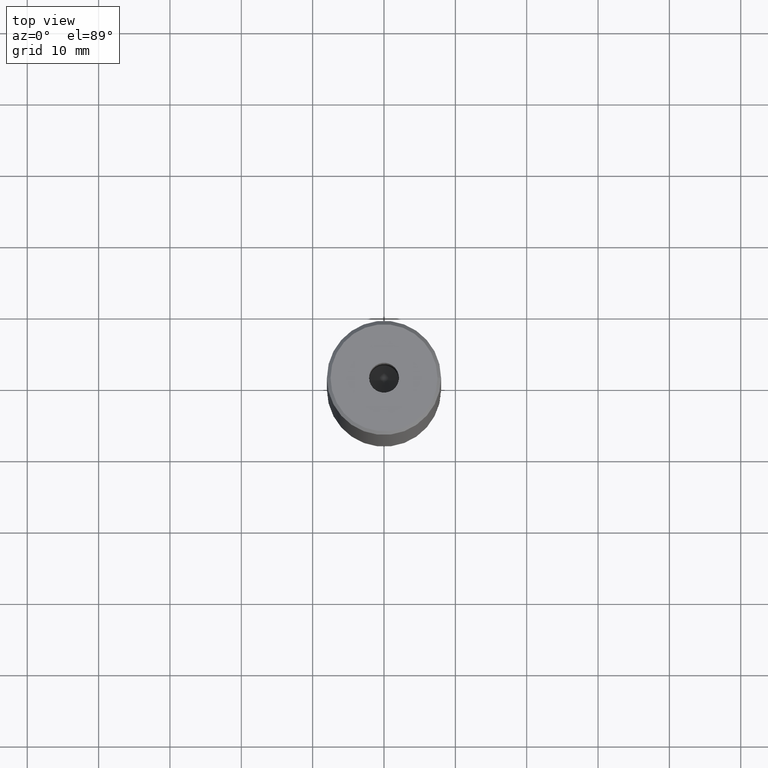
[diagram: clean part render]
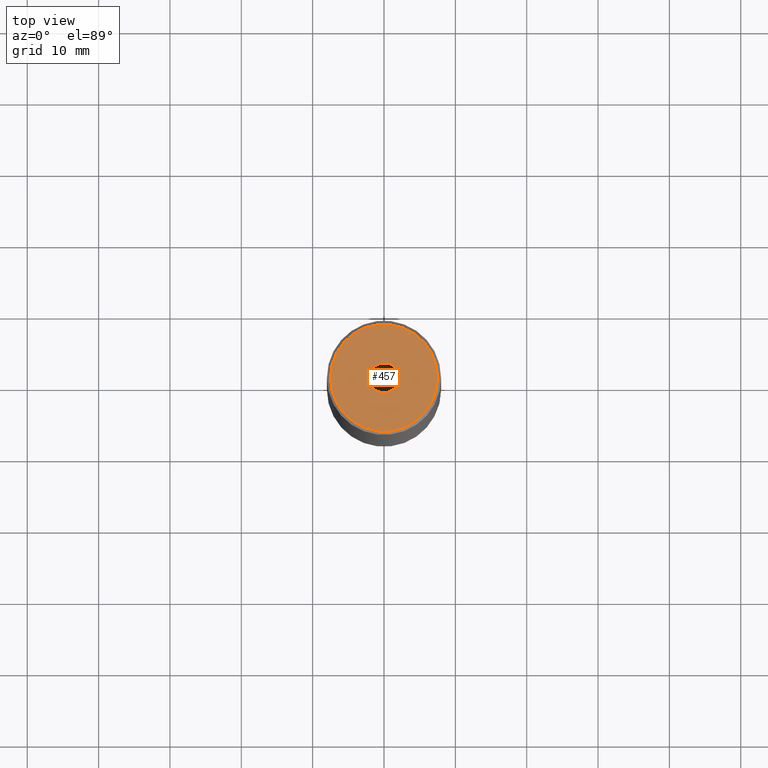
[diagram: same view with one face highlighted and labeled with its STEP entity id]
A machine part, top view. The second image highlights one B-rep face of the part: STEP entity #457.
In plain terms, the highlighted planar face has unit normal (0, -0, 1).
Its self-contained STEP definition (entity closure, byte-faithful):
#9 = VERTEX_POINT ( 'NONE', #400 ) ;
#26 = EDGE_LOOP ( 'NONE', ( #102, #473 ) ) ;
#47 = CIRCLE ( 'NONE', #399, 7.499999999999978684 ) ;
#62 = FACE_OUTER_BOUND ( 'NONE', #26, .T. ) ;
#68 = DIRECTION ( 'NONE',  ( 1.000000000000000000, 0.000000000000000000, 0.000000000000000000 ) ) ;
#74 = AXIS2_PLACEMENT_3D ( 'NONE', #79, #386, #249 ) ;
#79 = CARTESIAN_POINT ( 'NONE',  ( 0.000000000000000000, 0.000000000000000000, -1.990051048614449116E-16 ) ) ;
#102 = ORIENTED_EDGE ( 'NONE', *, *, #486, .T. ) ;
#105 = CARTESIAN_POINT ( 'NONE',  ( 0.000000000000000000, 0.000000000000000000, 0.000000000000000000 ) ) ;
#116 = AXIS2_PLACEMENT_3D ( 'NONE', #279, #283, #148 ) ;
#144 = DIRECTION ( 'NONE',  ( -0.000000000000000000, -0.000000000000000000, 1.000000000000000000 ) ) ;
#148 = DIRECTION ( 'NONE',  ( 1.000000000000000000, 0.000000000000000000, 0.000000000000000000 ) ) ;
#151 = DIRECTION ( 'NONE',  ( 1.000000000000000000, 0.000000000000000000, 0.000000000000000000 ) ) ;
#183 = CARTESIAN_POINT ( 'NONE',  ( -2.099999999999998757, 2.571758278209440478E-16, -1.990051048614449116E-16 ) ) ;
#185 = DIRECTION ( 'NONE',  ( 1.000000000000000000, 0.000000000000000000, 0.000000000000000000 ) ) ;
#188 = CARTESIAN_POINT ( 'NONE',  ( 0.000000000000000000, 0.000000000000000000, 0.000000000000000000 ) ) ;
#210 = ORIENTED_EDGE ( 'NONE', *, *, #427, .F. ) ;
#238 = AXIS2_PLACEMENT_3D ( 'NONE', #508, #144, #151 ) ;
#242 = DIRECTION ( 'NONE',  ( 0.000000000000000000, -0.000000000000000000, 1.000000000000000000 ) ) ;
#249 = DIRECTION ( 'NONE',  ( 1.000000000000000000, 0.000000000000000000, 0.000000000000000000 ) ) ;
#252 = EDGE_CURVE ( 'NONE', #406, #332, #324, .T. ) ;
#255 = CIRCLE ( 'NONE', #238, 7.499999999999978684 ) ;
#276 = PLANE ( 'NONE',  #299 ) ;
#279 = CARTESIAN_POINT ( 'NONE',  ( 0.000000000000000000, 0.000000000000000000, -1.990051048614449116E-16 ) ) ;
#283 = DIRECTION ( 'NONE',  ( -0.000000000000000000, -0.000000000000000000, 1.000000000000000000 ) ) ;
#299 = AXIS2_PLACEMENT_3D ( 'NONE', #188, #242, #68 ) ;
#300 = ORIENTED_EDGE ( 'NONE', *, *, #252, .F. ) ;
#312 = EDGE_LOOP ( 'NONE', ( #210, #300 ) ) ;
#315 = CARTESIAN_POINT ( 'NONE',  ( -7.499999999999978684, 0.000000000000000000, 0.000000000000000000 ) ) ;
#321 = FACE_BOUND ( 'NONE', #312, .T. ) ;
#324 = CIRCLE ( 'NONE', #74, 2.099999999999998757 ) ;
#332 = VERTEX_POINT ( 'NONE', #504 ) ;
#386 = DIRECTION ( 'NONE',  ( -0.000000000000000000, -0.000000000000000000, 1.000000000000000000 ) ) ;
#399 = AXIS2_PLACEMENT_3D ( 'NONE', #105, #456, #185 ) ;
#400 = CARTESIAN_POINT ( 'NONE',  ( 7.499999999999978684, 9.491012693391973982E-16, 0.000000000000000000 ) ) ;
#406 = VERTEX_POINT ( 'NONE', #183 ) ;
#427 = EDGE_CURVE ( 'NONE', #332, #406, #563, .T. ) ;
#433 = VERTEX_POINT ( 'NONE', #315 ) ;
#456 = DIRECTION ( 'NONE',  ( -0.000000000000000000, -0.000000000000000000, 1.000000000000000000 ) ) ;
#457 = ADVANCED_FACE ( 'NONE', ( #321, #62 ), #276, .T. ) ;
#473 = ORIENTED_EDGE ( 'NONE', *, *, #476, .T. ) ;
#476 = EDGE_CURVE ( 'NONE', #9, #433, #255, .T. ) ;
#486 = EDGE_CURVE ( 'NONE', #433, #9, #47, .T. ) ;
#504 = CARTESIAN_POINT ( 'NONE',  ( 2.099999999999998757, 0.000000000000000000, -1.990051048614449116E-16 ) ) ;
#508 = CARTESIAN_POINT ( 'NONE',  ( 0.000000000000000000, 0.000000000000000000, 0.000000000000000000 ) ) ;
#563 = CIRCLE ( 'NONE', #116, 2.099999999999998757 ) ;